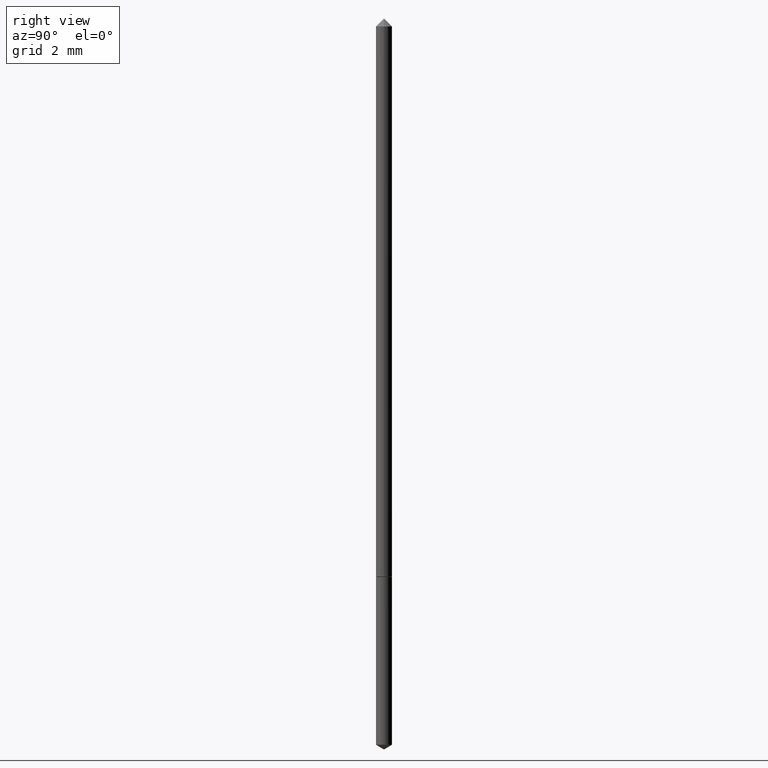
[diagram: clean part render]
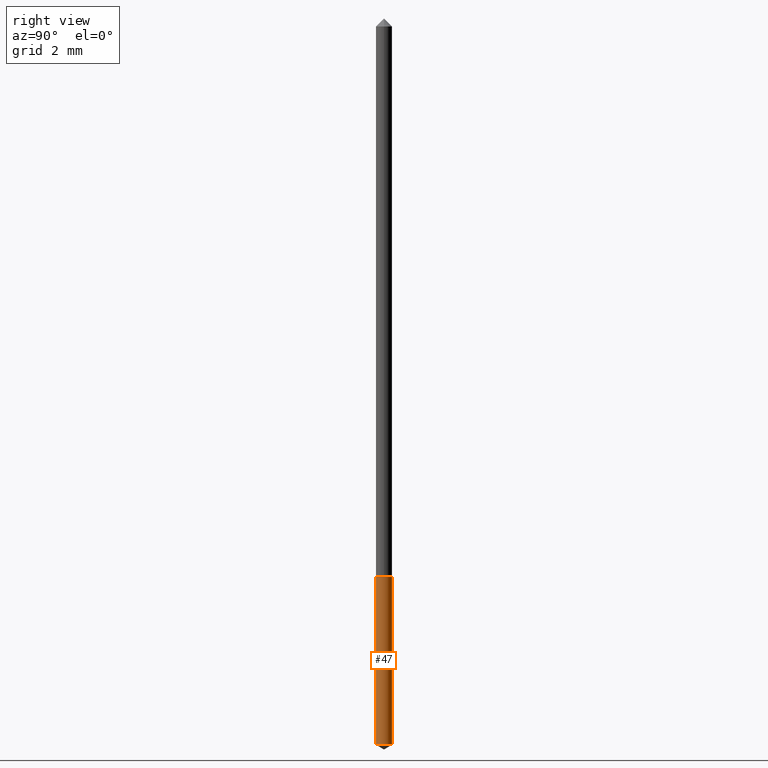
[diagram: same view with one face highlighted and labeled with its STEP entity id]
A machine part, right view. The second image highlights one B-rep face of the part: STEP entity #47.
In plain terms, the highlighted cylindrical surface (edge-blend (fillet) strip) has radius 0.2032 mm, axis along (-0, 0, 1).
Its self-contained STEP definition (entity closure, byte-faithful):
#18 = DIRECTION ( 'NONE',  ( -6.982962677686266711E-15, -1.000000000000000000, 0.000000000000000000 ) ) ;
#37 = DIRECTION ( 'NONE',  ( -2.446102391056605084E-29, 3.490574009245791295E-15, 1.000000000000000000 ) ) ;
#40 = CARTESIAN_POINT ( 'NONE',  ( 1.414703704378101696E-29, -2.019821954520759698E-15, -0.5785000000000000142 ) ) ;
#45 = DIRECTION ( 'NONE',  ( -6.982962677686266711E-15, -1.000000000000000000, 0.000000000000000000 ) ) ;
#47 = ADVANCED_FACE ( 'NONE', ( #270 ), #97, .T. ) ;
#52 = EDGE_LOOP ( 'NONE', ( #312, #177, #237, #363 ) ) ;
#78 = LINE ( 'NONE', #335, #232 ) ;
#79 = AXIS2_PLACEMENT_3D ( 'NONE', #318, #349, #18 ) ;
#80 = CARTESIAN_POINT ( 'NONE',  ( 5.684341886082627079E-17, 0.007999999999997980948, -0.5785000000000000142 ) ) ;
#91 = LINE ( 'NONE', #153, #357 ) ;
#93 = DIRECTION ( 'NONE',  ( -2.446102391056605084E-29, 3.490574009245791295E-15, 1.000000000000000000 ) ) ;
#97 = CYLINDRICAL_SURFACE ( 'NONE', #259, 0.008000000000000000167 ) ;
#99 = EDGE_CURVE ( 'NONE', #169, #343, #246, .T. ) ;
#119 = DIRECTION ( 'NONE',  ( -6.982962677686266711E-15, -1.000000000000000000, 0.000000000000000000 ) ) ;
#125 = CARTESIAN_POINT ( 'NONE',  ( -5.586370142147598546E-17, -0.008000000000002021119, -0.5785000000000000142 ) ) ;
#151 = EDGE_CURVE ( 'NONE', #231, #256, #314, .T. ) ;
#153 = CARTESIAN_POINT ( 'NONE',  ( -5.586370142147598546E-17, -0.008000000000002021119, -0.5785000000000000142 ) ) ;
#167 = EDGE_CURVE ( 'NONE', #169, #231, #91, .T. ) ;
#169 = VERTEX_POINT ( 'NONE', #323 ) ;
#171 = CARTESIAN_POINT ( 'NONE',  ( 5.684341886082623381E-17, 0.007999999999997398081, -0.7451931150477797416 ) ) ;
#177 = ORIENTED_EDGE ( 'NONE', *, *, #194, .T. ) ;
#189 = CARTESIAN_POINT ( 'NONE',  ( 1.414703704378101696E-29, -2.019821954520759698E-15, -0.5785000000000000142 ) ) ;
#194 = EDGE_CURVE ( 'NONE', #343, #256, #78, .T. ) ;
#231 = VERTEX_POINT ( 'NONE', #125 ) ;
#232 = VECTOR ( 'NONE', #250, 39.37007874015748143 ) ;
#237 = ORIENTED_EDGE ( 'NONE', *, *, #151, .F. ) ;
#246 = CIRCLE ( 'NONE', #79, 0.008000000000000000167 ) ;
#250 = DIRECTION ( 'NONE',  ( -2.446102391056605084E-29, 3.490574009245791295E-15, 1.000000000000000000 ) ) ;
#256 = VERTEX_POINT ( 'NONE', #80 ) ;
#259 = AXIS2_PLACEMENT_3D ( 'NONE', #40, #93, #45 ) ;
#270 = FACE_OUTER_BOUND ( 'NONE', #52, .T. ) ;
#301 = DIRECTION ( 'NONE',  ( -2.446102391056605084E-29, 3.490574009245791295E-15, 1.000000000000000000 ) ) ;
#310 = AXIS2_PLACEMENT_3D ( 'NONE', #189, #301, #119 ) ;
#312 = ORIENTED_EDGE ( 'NONE', *, *, #99, .T. ) ;
#314 = CIRCLE ( 'NONE', #310, 0.008000000000000000167 ) ;
#318 = CARTESIAN_POINT ( 'NONE',  ( 1.822452131669149345E-29, -2.601676609426758371E-15, -0.7451931150477797416 ) ) ;
#323 = CARTESIAN_POINT ( 'NONE',  ( -5.586370142147189325E-17, -0.008000000000002600517, -0.7451931150477797416 ) ) ;
#335 = CARTESIAN_POINT ( 'NONE',  ( 5.684341886082215392E-17, 0.007999999999997980948, -0.5785000000000000142 ) ) ;
#343 = VERTEX_POINT ( 'NONE', #171 ) ;
#349 = DIRECTION ( 'NONE',  ( -2.446102391056605084E-29, 3.490574009245791295E-15, 1.000000000000000000 ) ) ;
#357 = VECTOR ( 'NONE', #37, 39.37007874015748143 ) ;
#363 = ORIENTED_EDGE ( 'NONE', *, *, #167, .F. ) ;